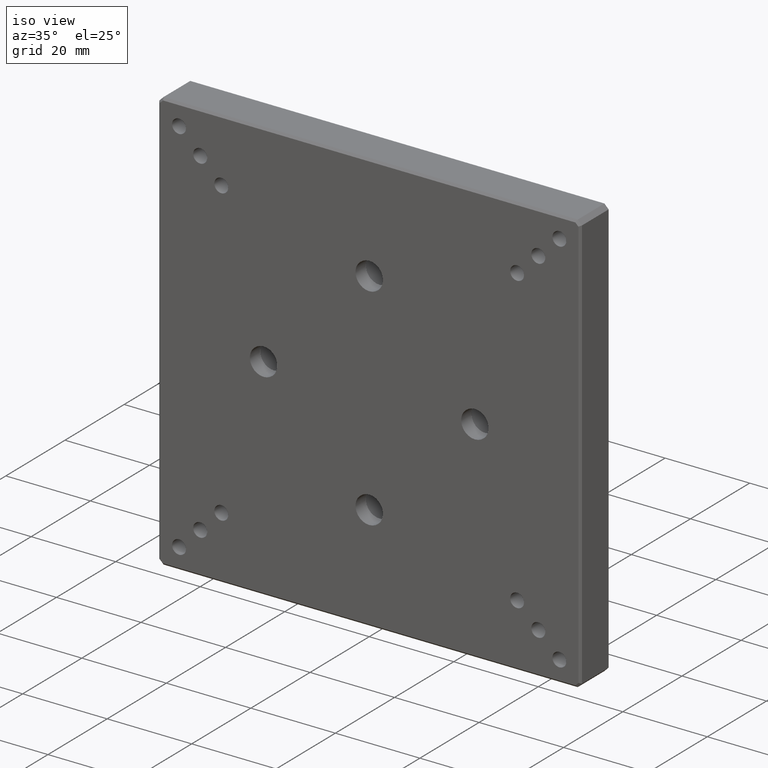
[diagram: clean part render]
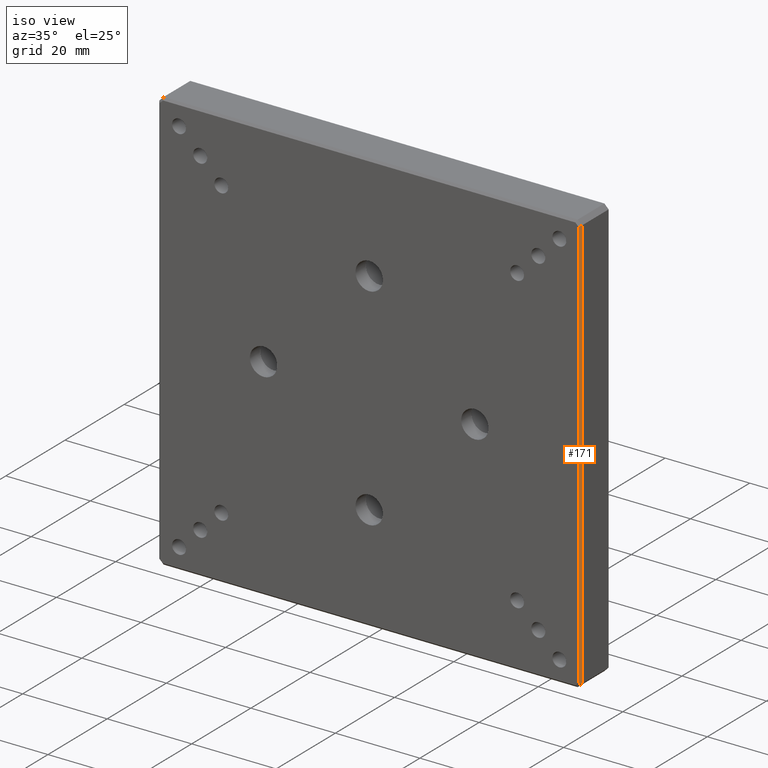
[diagram: same view with one face highlighted and labeled with its STEP entity id]
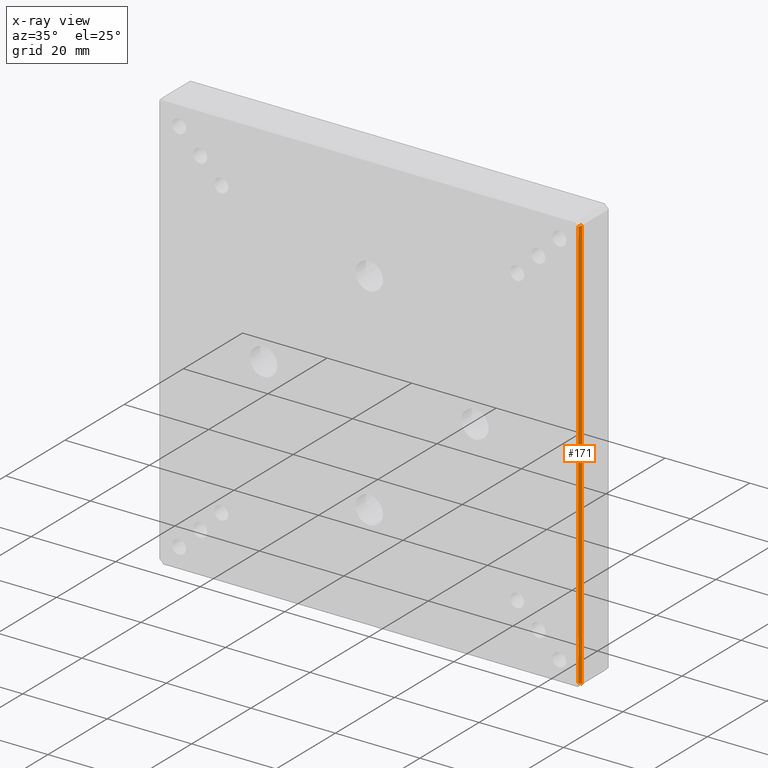
[diagram: x-ray of the same camera — body ghosted, the highlighted face saturated]
A machine part, iso view. The second image highlights one B-rep face of the part: STEP entity #171.
The next image is the same camera in x-ray: the body ghosted, the highlighted face saturated — about 0% of this face is hidden behind the body in this view.
In plain terms, the highlighted planar face has unit normal (-0.7071, 0.7071, 0).
Its self-contained STEP definition (entity closure, byte-faithful):
#6 = FACE_OUTER_BOUND ( 'NONE', #1244, .T. ) ;
#19 = LINE ( 'NONE', #971, #149 ) ;
#114 = PLANE ( 'NONE',  #735 ) ;
#131 = VECTOR ( 'NONE', #619, 1000.000000000000114 ) ;
#149 = VECTOR ( 'NONE', #1104, 1000.000000000000000 ) ;
#167 = ORIENTED_EDGE ( 'NONE', *, *, #1715, .T. ) ;
#171 = ADVANCED_FACE ( 'NONE', ( #6 ), #114, .F. ) ;
#199 = EDGE_CURVE ( 'NONE', #1546, #1052, #798, .T. ) ;
#257 = CARTESIAN_POINT ( 'NONE',  ( 49.40462821508472757, -0.09537178491526940305, -48.75338893203382895 ) ) ;
#343 = CARTESIAN_POINT ( 'NONE',  ( 49.49999999999999289, 0.000000000000000000, -48.79289321881346808 ) ) ;
#344 = ORIENTED_EDGE ( 'NONE', *, *, #199, .F. ) ;
#434 = CARTESIAN_POINT ( 'NONE',  ( 50.00000000000000711, 0.5000000000000004441, 49.00000000000000000 ) ) ;
#444 = CARTESIAN_POINT ( 'NONE',  ( 49.99999999999999289, 0.5000000000000004441, -49.00000000000001421 ) ) ;
#488 = VERTEX_POINT ( 'NONE', #1746 ) ;
#535 = DIRECTION ( 'NONE',  ( -0.7071067811865475727, 0.7071067811865475727, 9.813077866773594484E-17 ) ) ;
#544 = DIRECTION ( 'NONE',  ( -1.387778780781445676E-16, 0.000000000000000000, -1.000000000000000000 ) ) ;
#619 = DIRECTION ( 'NONE',  ( -0.6785983445458459995, -0.6785983445458459995, -0.2810846377148249475 ) ) ;
#640 = DIRECTION ( 'NONE',  ( 1.387778780781445676E-16, 0.000000000000000000, 1.000000000000000000 ) ) ;
#669 = EDGE_CURVE ( 'NONE', #800, #1546, #19, .T. ) ;
#735 = AXIS2_PLACEMENT_3D ( 'NONE', #788, #535, #544 ) ;
#766 = LINE ( 'NONE', #1747, #131 ) ;
#788 = CARTESIAN_POINT ( 'NONE',  ( 49.99999999999999289, 0.5000000000000004441, -49.99999999999998579 ) ) ;
#798 = LINE ( 'NONE', #257, #916 ) ;
#800 = VERTEX_POINT ( 'NONE', #434 ) ;
#916 = VECTOR ( 'NONE', #1368, 1000.000000000000114 ) ;
#971 = CARTESIAN_POINT ( 'NONE',  ( 49.99999999999999289, 0.5000000000000004441, -49.99999999999998579 ) ) ;
#1052 = VERTEX_POINT ( 'NONE', #343 ) ;
#1104 = DIRECTION ( 'NONE',  ( -1.387778780781445676E-16, 0.000000000000000000, -1.000000000000000000 ) ) ;
#1127 = ORIENTED_EDGE ( 'NONE', *, *, #1374, .F. ) ;
#1244 = EDGE_LOOP ( 'NONE', ( #167, #1127, #344, #1338 ) ) ;
#1338 = ORIENTED_EDGE ( 'NONE', *, *, #669, .F. ) ;
#1368 = DIRECTION ( 'NONE',  ( -0.6785983445458459995, -0.6785983445458459995, 0.2810846377148250586 ) ) ;
#1374 = EDGE_CURVE ( 'NONE', #1052, #488, #1742, .T. ) ;
#1546 = VERTEX_POINT ( 'NONE', #444 ) ;
#1593 = CARTESIAN_POINT ( 'NONE',  ( 49.50000000000000000, 0.000000000000000000, -6.869504964868156094E-15 ) ) ;
#1649 = VECTOR ( 'NONE', #640, 1000.000000000000000 ) ;
#1715 = EDGE_CURVE ( 'NONE', #800, #488, #766, .T. ) ;
#1742 = LINE ( 'NONE', #1593, #1649 ) ;
#1746 = CARTESIAN_POINT ( 'NONE',  ( 49.50000000000000711, 0.000000000000000000, 48.79289321881344677 ) ) ;
#1747 = CARTESIAN_POINT ( 'NONE',  ( 31.11638658677564351, -18.38361341322436004, 41.17815121763183583 ) ) ;